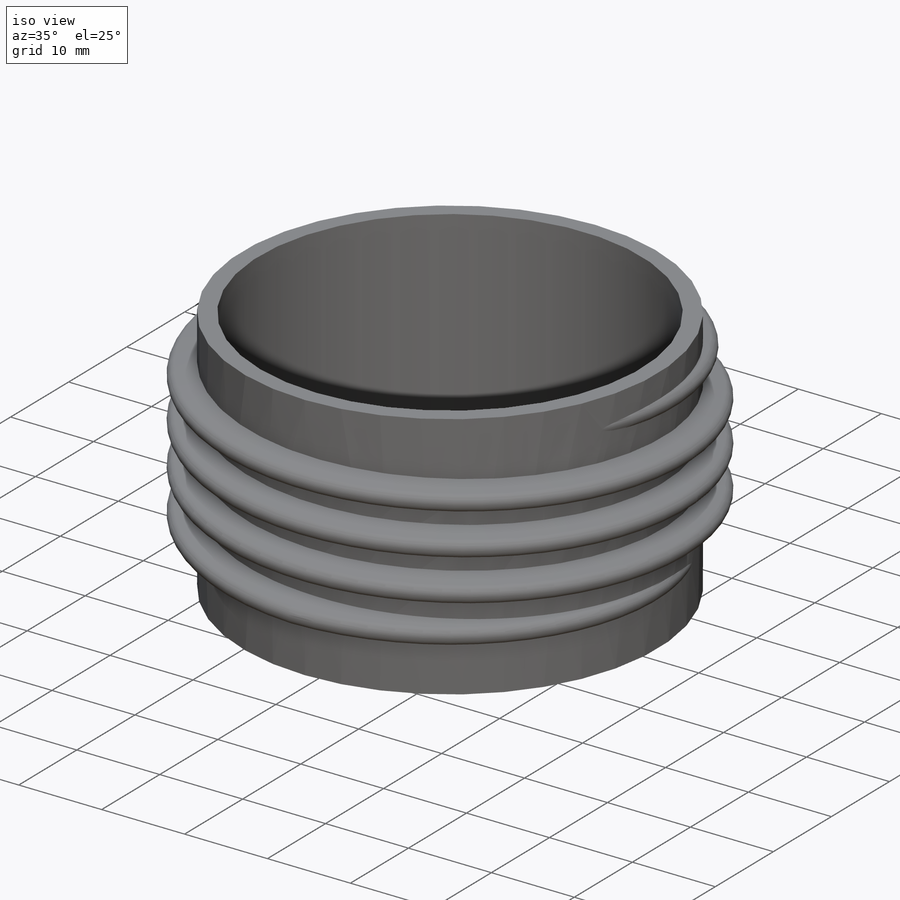
[diagram: iso view]
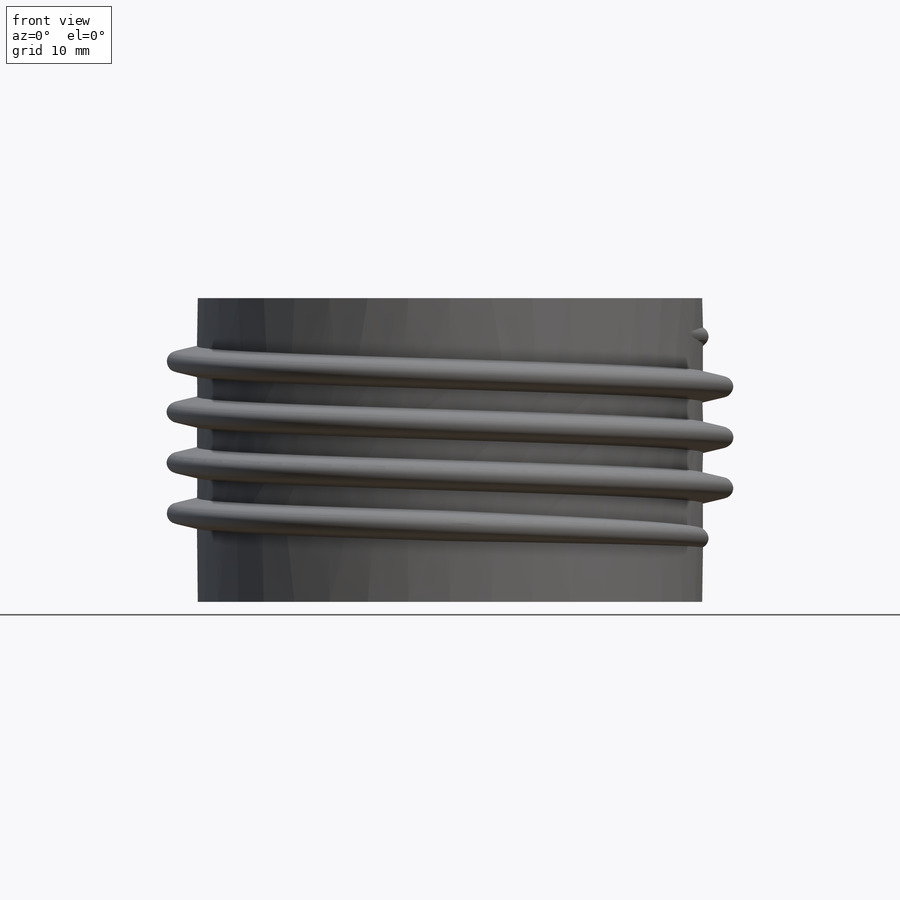
[diagram: front view]
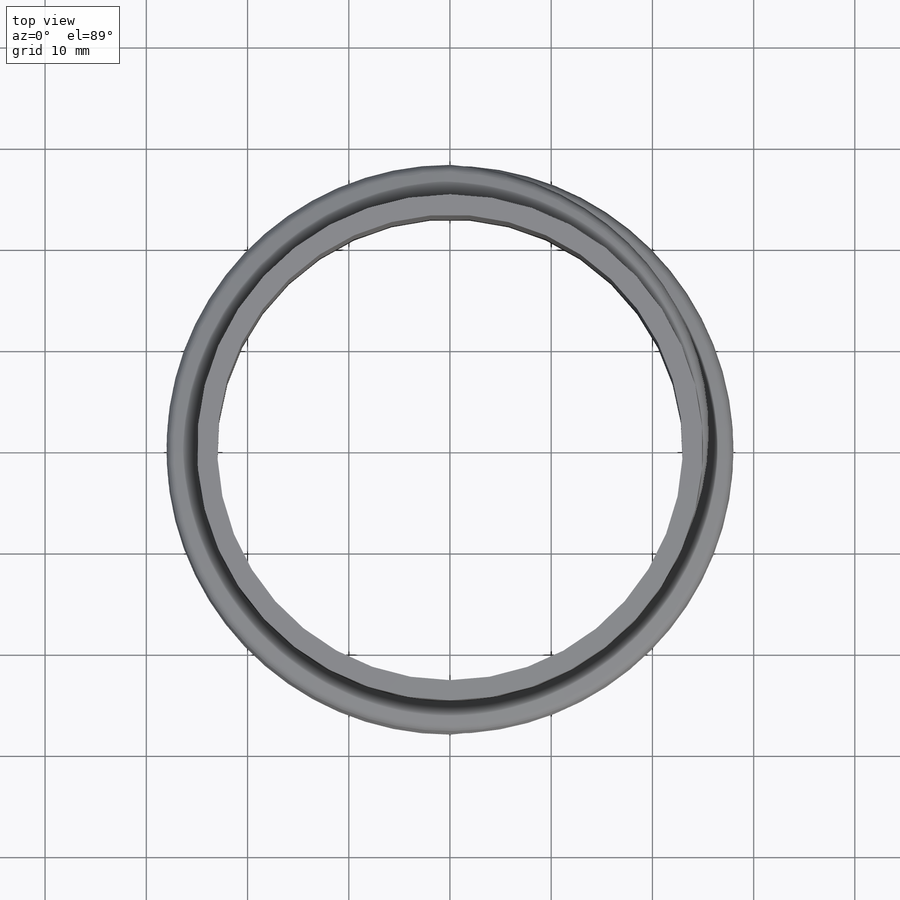
[diagram: top view]
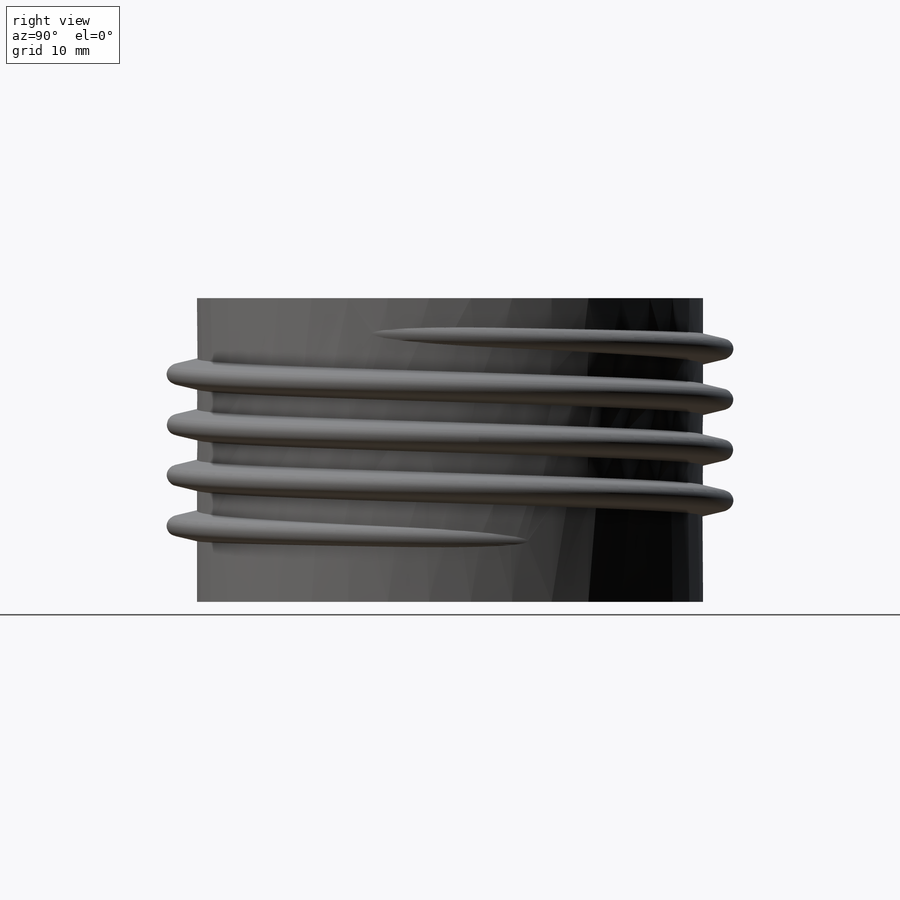
[diagram: right view]
SOLIDWORKS PART (.sldprt)
format: sldprt  version: not decoded by parser v0  size: 692,224 bytes
history: native  units: mm
features: sketch x4, plane x3, material x1, extrude x1, helix x1, sweep x1, cut_extrude x1 (+11 scaffold rows collapsed)
feature tree (23):
  scaffold x11  (default folders/planes/origin — collapsed)
  material  "PVC hart"
  plane  "Ebene vorne"
  plane  "Ebene oben"
  plane  "Ebene rechts"
  sketch  "Skizze1"  dims[D1=50.0mm]
  extrude  "Zyl"  Depth=25mm
  sketch  "Skizze2"  dims[D1=40.0mm]
  helix  "Helix"  Pitch=2.5mm
  sketch  "Skizze3"  dims[D3=1.0mm D1=3.0mm D2=3.0mm]
  sweep  "Gewinde"
  sketch  "Skizze4"  dims[D1=2.0mm]
  cut_extrude  "Bohrung Innen"  [1 undecoded]
decode coverage: 6 of 8 modeling features carry decoded parameters
note: 1 parameter value undecoded
note: suppression state not decoded; provenance and decode notes live in map.json
